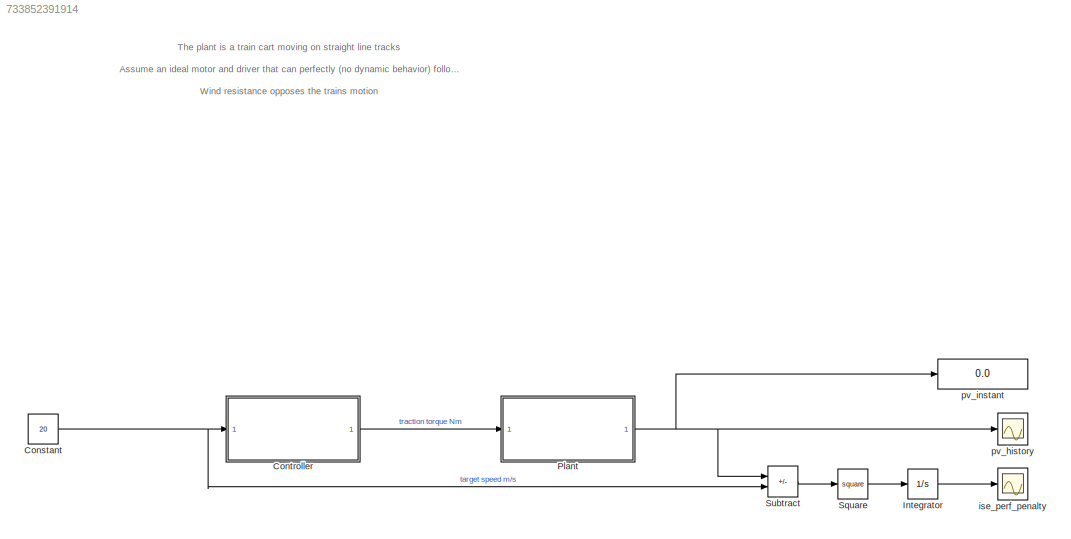
MODEL slx_733852391914
KIND model
CONFIG AbsTol = auto
CONFIG EnableMultiTasking = off
CONFIG FixedStep = auto
CONFIG MaxStep = auto
CONFIG MinStep = auto
CONFIG RelTol = 1e-3
CONFIG SampleTimeConstraint = Unconstrained
CONFIG SolverName = VariableStepAuto
CONFIG StartTime = 0.0
CONFIG StopTime = 600
BLOCK [Constant] Constant
  Value = 20
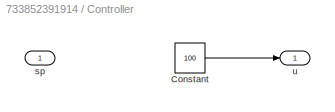
BLOCK [SubSystem] Controller
BLOCK [Constant] Controller/Constant
  Value = 100
BLOCK [Inport] Controller/sp
BLOCK [Outport] Controller/u
BLOCK [Integrator] Integrator
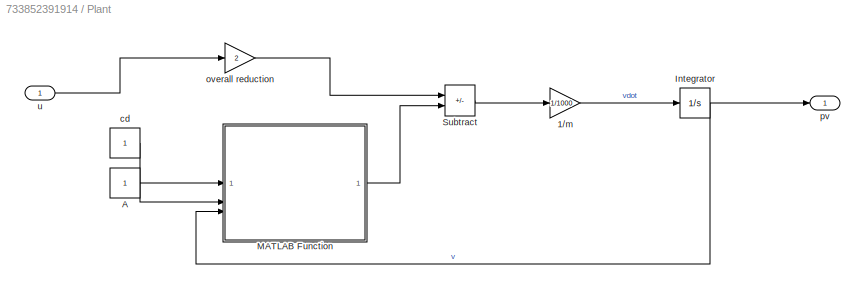
BLOCK [SubSystem] Plant
BLOCK [Gain] Plant/1//m
  Gain = 1/1000
BLOCK [Constant] Plant/A
  NameLocation = left
BLOCK [Integrator] Plant/Integrator
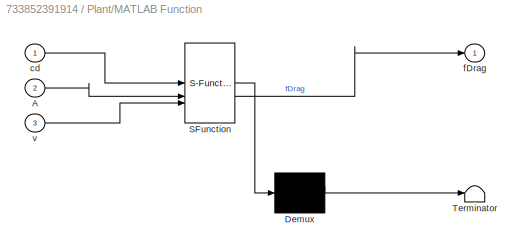
BLOCK [SubSystem] Plant/MATLAB Function
  ErrorFcn = Stateflow.Translate.translate
  PermitHierarchicalResolution = ExplicitOnly
  SFBlockType = MATLAB Function
  TreatAsAtomicUnit = on
BLOCK [Demux] Plant/MATLAB Function/ Demux 
  Outputs = 1
BLOCK [S-Function] Plant/MATLAB Function/ SFunction 
  EnableBusSupport = on
  FunctionName = sf_sfun
  PortCounts = [3 2]
  SFcnIsStateOwnerBlock = off
  SFunctionDeploymentMode = off
  Tag = Stateflow S-Function 2
BLOCK [Terminator] Plant/MATLAB Function/ Terminator 
BLOCK [Inport] Plant/MATLAB Function/A
  Port = 2
BLOCK [Inport] Plant/MATLAB Function/cd
BLOCK [Outport] Plant/MATLAB Function/fDrag
BLOCK [Inport] Plant/MATLAB Function/v
  Port = 3
BLOCK [Sum] Plant/Subtract
  IconShape = rectangular
  Inputs = +-
BLOCK [Constant] Plant/cd
  NameLocation = left
BLOCK [Gain] Plant/overall reduction
  Gain = 2
BLOCK [Outport] Plant/pv
BLOCK [Inport] Plant/u
BLOCK [Math] Square
  Operator = square
BLOCK [Sum] Subtract
  IconShape = rectangular
  Inputs = +-
BLOCK [Scope] ise_perf_penalty
  Floating = off
  NameLocation = right
  NumInputPorts = 1
  ScopeSpecificationString = Simulink.scopes.TimeScopeBlockCfg('CurrentConfiguration', extmgr.ConfigurationSet(extmgr.Configuration('Core','General UI',true),extmgr.Configuration('Core','Source UI',true),extmgr.Configuration('Sources','WiredSimulink',true,'DataLoggingVariableName','ScopeData1'),extmgr.Configuration('Visuals','Time Domain',true,'SerializedDisplays',{struct('MinYLimReal','-1931.4717','MaxYLimReal','17383.24533'...<+1422ch>
BLOCK [Scope] pv_history
  Floating = off
  NameLocation = right
  NumInputPorts = 1
  ScopeSpecificationString = Simulink.scopes.TimeScopeBlockCfg('CurrentConfiguration', extmgr.ConfigurationSet(extmgr.Configuration('Core','General UI',true),extmgr.Configuration('Core','Source UI',true),extmgr.Configuration('Sources','WiredSimulink',true),extmgr.Configuration('Visuals','Time Domain',true,'SerializedDisplays',{struct('MinYLimReal','-2.49997','MaxYLimReal','22.49972','YLabelReal','','MinYLimMag','0.00000','Max...<+1402ch>
BLOCK [Display] pv_instant
  Decimation = 1
  NameLocation = right
ANNOTATION (root): The plant is a train cart moving on straight line tracks Assume an ideal motor and driver that can perfectly (no dynamic behavior) follow torque commands from your controller Wind resistance opposes the trains motion Make it cruise at setpoint velocity You can only modify the controller block between its input and output ports not the number of ports or what these are connected to to. Feedback is ...<+136ch>
NET Constant:1 -> Controller:1, Subtract:2
LINE Controller/Constant:1 -> Controller/u:1
LINE Controller:1 -> Plant:1
LINE Integrator:1 -> ise_perf_penalty:1
LINE Plant/1//m:1 -> Plant/Integrator:1
LINE Plant/A:1 -> Plant/MATLAB Function:2
NET Plant/Integrator:1 -> Plant/MATLAB Function:3, Plant/pv:1
LINE Plant/MATLAB Function:1 -> Plant/Subtract:2
LINE Plant/Subtract:1 -> Plant/1//m:1
LINE Plant/cd:1 -> Plant/MATLAB Function:1
LINE Plant/overall reduction:1 -> Plant/Subtract:1
LINE Plant/u:1 -> Plant/overall reduction:1
NET Plant:1 -> Subtract:1, pv_history:1, pv_instant:1
LINE Square:1 -> Integrator:1
LINE Subtract:1 -> Square:1
note: NET lines group one-source signal fan-out (src -> all destinations, sorted); 1:1 wires keep LINE
CHART Plant/MATLAB Function states=1 transitions=1
  STATE_LABEL 'eML_blk_kernel()'
  STATE_LABEL 'SCRIPT:\nfunction fDrag = airDrag(cd, A, v)\nfDrag = 0.5 * cd * A * v ^ 2;\n'
CHART  states=0 transitions=0
